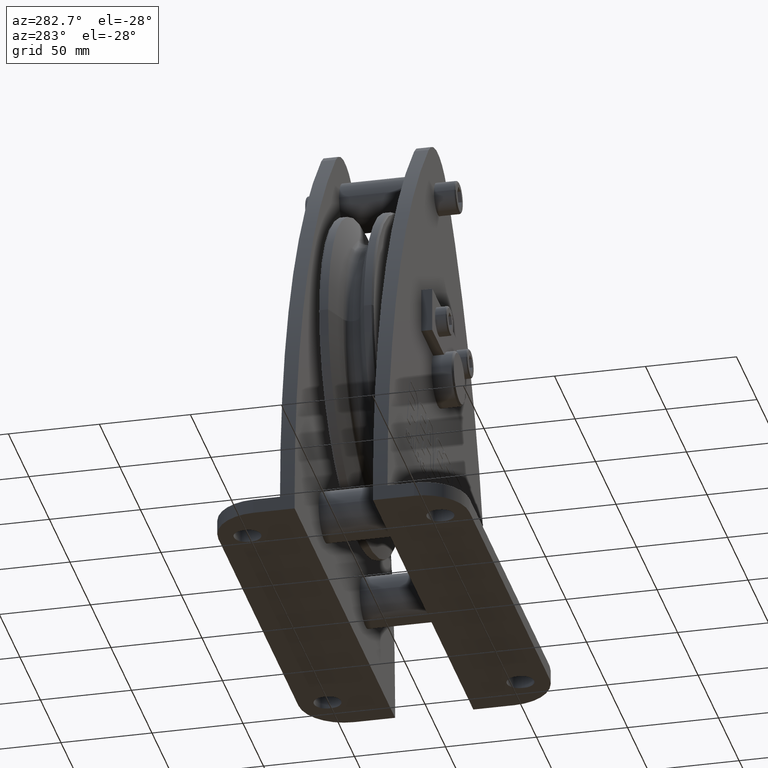
[diagram: clean part render]
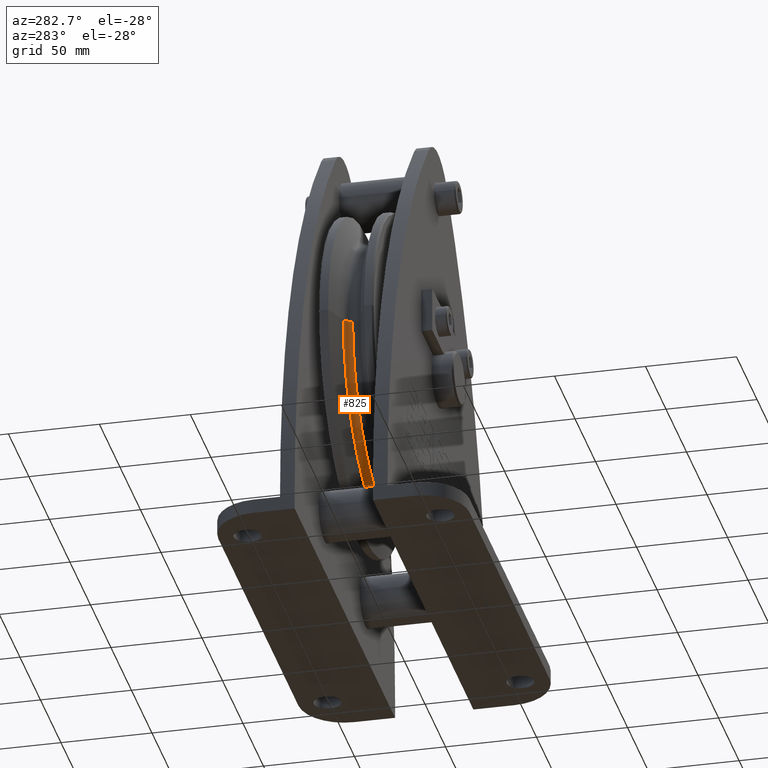
[diagram: same view with one face highlighted and labeled with its STEP entity id]
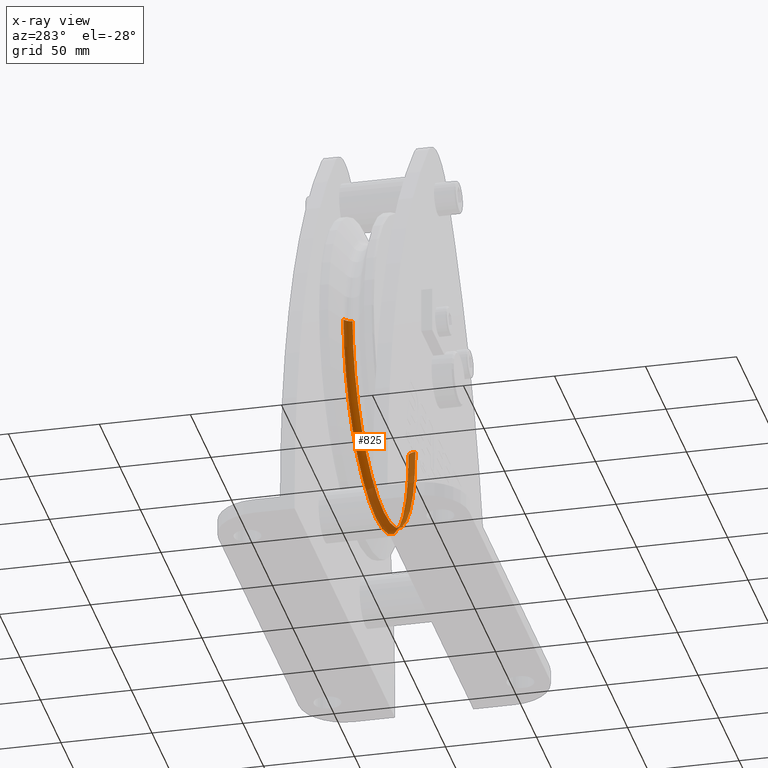
[diagram: x-ray of the same camera — body ghosted, the highlighted face saturated]
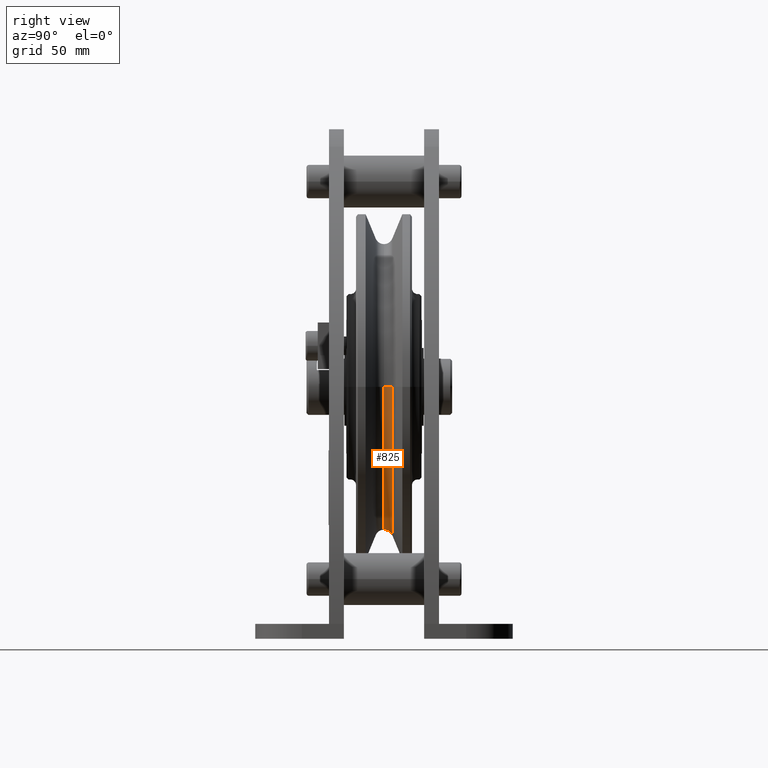
[diagram: same view with one face highlighted and labeled with its STEP entity id]
A machine part, auxiliary view. The second image highlights one B-rep face of the part: STEP entity #825.
The next image is the same camera in x-ray: the body ghosted, the highlighted face saturated — about 38% of this face is hidden behind the body in this view.
A second angle (right view) of the same face is appended — the face is thin or edge-on in the first view.
In plain terms, the highlighted toroidal blend (fillet) surface has major radius 81.3 mm and minor (blend) radius 4.8 mm.
Its self-contained STEP definition (entity closure, byte-faithful):
#825=ADVANCED_FACE('',(#2236),#2237,.F.);
#2236=FACE_OUTER_BOUND('',#4322,.T.);
#2237=TOROIDAL_SURFACE('',#4323,81.3000000704,4.8000000704);
#4322=EDGE_LOOP('',(#6877,#6878,#6879,#6880));
#4323=AXIS2_PLACEMENT_3D('',#6881,#6882,#6883);
#6877=ORIENTED_EDGE('',*,*,#12431,.T.);
#6878=ORIENTED_EDGE('',*,*,#12774,.F.);
#6879=ORIENTED_EDGE('',*,*,#12775,.T.);
#6880=ORIENTED_EDGE('',*,*,#12776,.F.);
#6881=CARTESIAN_POINT('',(0.0,0.0,0.0));
#6882=DIRECTION('',(0.0,-1.0,0.0));
#6883=DIRECTION('',(1.0,0.0,0.0));
#12431=EDGE_CURVE('',#14912,#14911,#14920,.T.);
#12774=EDGE_CURVE('',#15490,#14911,#15494,.T.);
#12775=EDGE_CURVE('',#15490,#15488,#15495,.T.);
#12776=EDGE_CURVE('',#14912,#15488,#15496,.T.);
#14911=VERTEX_POINT('',#19499);
#14912=VERTEX_POINT('',#19500);
#14920=CIRCLE('',#19508,76.5);
#15488=VERTEX_POINT('',#21892);
#15490=VERTEX_POINT('',#21895);
#15494=CIRCLE('',#21900,4.8000000704);
#15495=CIRCLE('',#21901,79.46312);
#15496=CIRCLE('',#21902,4.8000000704);
#19499=CARTESIAN_POINT('',(-76.5,-5.87830472212243E-016,7.943072449433E-015));
#19500=CARTESIAN_POINT('',(76.5,-5.87830472212243E-016,-7.943072449433E-015));
#19508=AXIS2_PLACEMENT_3D('',#26957,#26958,#26959);
#21892=CARTESIAN_POINT('',(79.46312,4.434622,0.0));
#21895=CARTESIAN_POINT('',(-79.46312,4.434622,9.7314255558262E-015));
#21900=AXIS2_PLACEMENT_3D('',#27455,#27456,#27457);
#21901=AXIS2_PLACEMENT_3D('',#27458,#27459,#27460);
#21902=AXIS2_PLACEMENT_3D('',#27461,#27462,#27463);
#26957=CARTESIAN_POINT('',(0.0,-5.87830472212243E-016,0.0));
#26958=DIRECTION('',(-0.0,1.0,0.0));
#26959=DIRECTION('',(0.0,0.0,1.0));
#27455=CARTESIAN_POINT('',(-81.3000000704,0.0,9.95637848568949E-015));
#27456=DIRECTION('',(-1.22464679914735E-016,0.0,-1.0));
#27457=DIRECTION('',(-1.0,0.0,1.22464679914735E-016));
#27458=CARTESIAN_POINT('',(0.0,4.434622,0.0));
#27459=DIRECTION('',(0.0,-1.0,0.0));
#27460=DIRECTION('',(1.0,0.0,0.0));
#27461=CARTESIAN_POINT('',(81.3000000704,0.0,-9.95637848568949E-015));
#27462=DIRECTION('',(-1.22464679914735E-016,-0.0,-1.0));
#27463=DIRECTION('',(1.0,0.0,-1.22464679914735E-016));